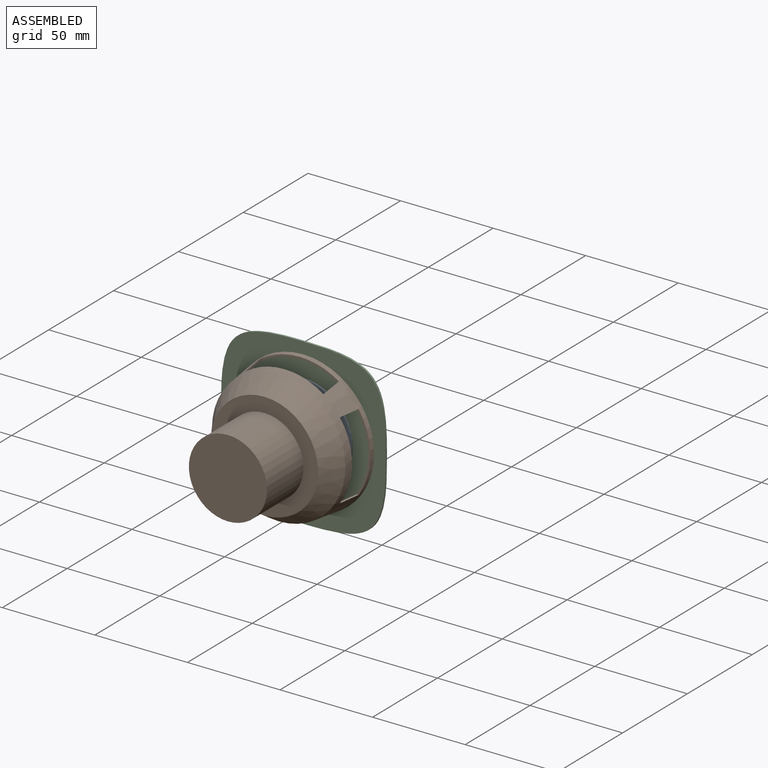
[diagram: assembled view]
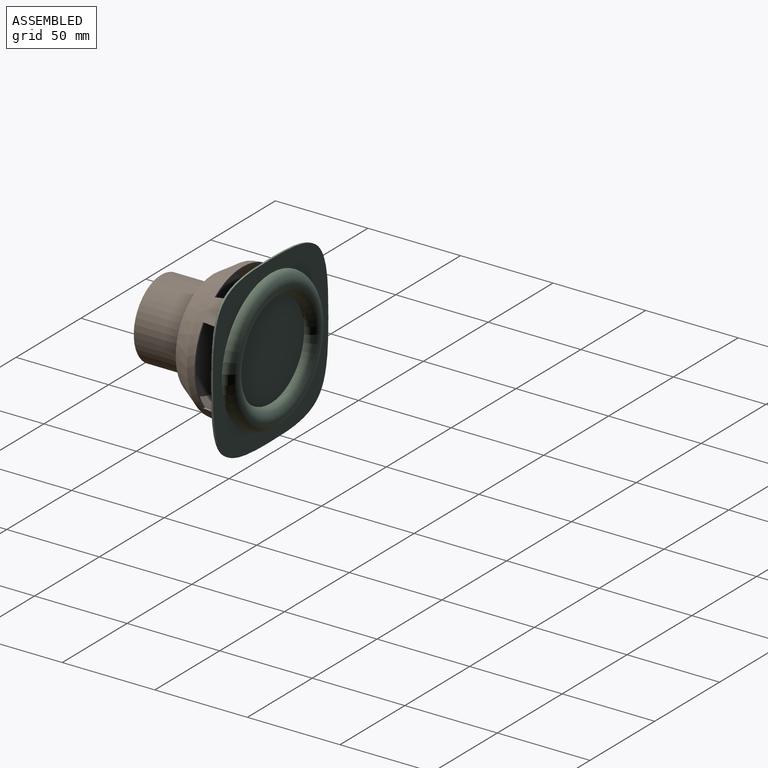
[diagram: assembled view, second angle]
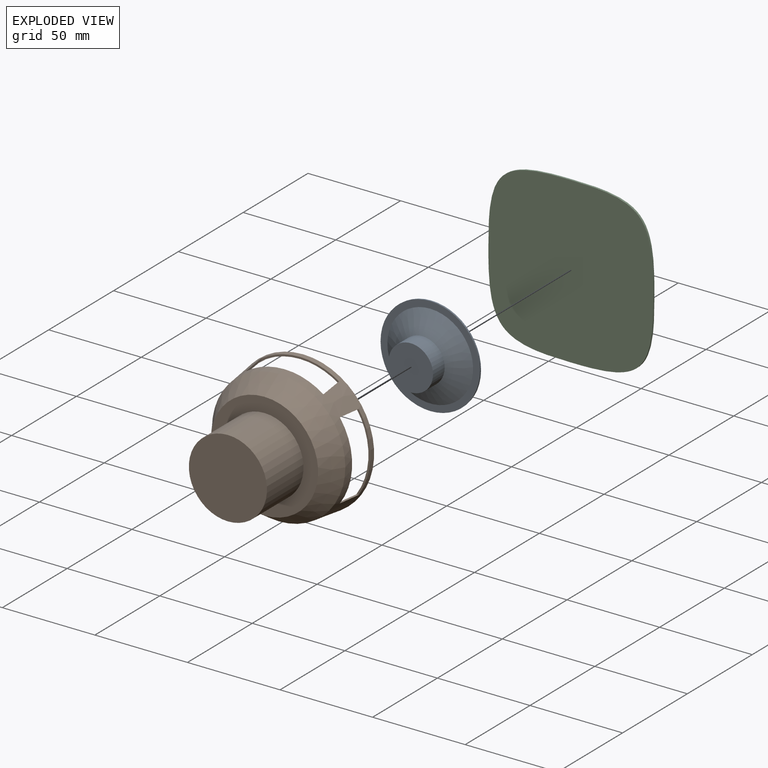
[diagram: exploded view]
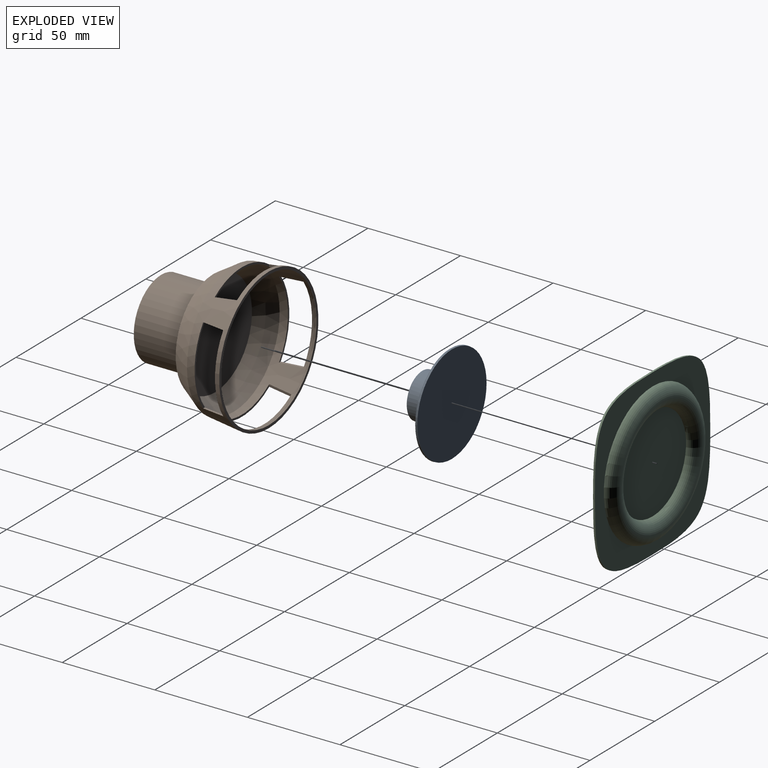
[diagram: exploded view, second angle]
ASSEMBLY  parts=3 mates=2
PART A: 6 faces, bbox 61x19.6x61 mm
  f0: plane 24x24mm, normal (0,-1,0), area 452.4mm2, adj f1
  f1: cylinder r=12mm len=24mm, axis (0,-1,0), area 678.6mm2, adj f0,f2
  f2: cone r=12mm half-angle=61.7deg, axis (0,1,0), area 1397.2mm2, adj f1,f3
  f3: plane 53.7x53.7mm, normal (0,-1,0), area 582.4mm2, adj f2,f4
  f4: torus R=31.75mm, axis (0,1,0), area 169.4mm2, adj f3,f5
  f5: plane 53.5x53.5mm, normal (0,1,0), area 2248mm2, adj f4
PART B: 27 faces, bbox 79.6x61.7x79.6 mm
  f0: torus R=31.75mm, axis (0,1,0), area 232.3mm2, adj f25,f26
  f1: plane 12.03x2.99mm, normal (-1,0,0), area 14.7mm2, adj f2,f4,f13,f22
  f2: plane 42x7.56mm, normal (0,-1,0), area 44.9mm2, adj f1,f3,f13,f22
  f3: plane 12.03x2.99mm, normal (1,0,0), area 14.7mm2, adj f2,f4,f13,f22
  f4: plane 42x7.88mm, normal (0,1,0), area 45.2mm2, adj f1,f3,f13,f22
  f5: plane 12.03x2.99mm, normal (0,0,-1), area 14.7mm2, adj f6,f8,f13,f22
  f6: plane 42x7.56mm, normal (0,-1,0), area 44.9mm2, adj f5,f7,f13,f22
  f7: plane 12.03x2.99mm, normal (0,0,1), area 14.7mm2, adj f6,f8,f13,f22
  f8: plane 42x7.88mm, normal (0,1,0), area 45.2mm2, adj f5,f7,f13,f22
  f9: plane 12.03x2.99mm, normal (1,0,0), area 14.7mm2, adj f10,f12,f13,f22
  f10: plane 42x7.56mm, normal (0,-1,0), area 44.9mm2, adj f9,f11,f13,f22
  f11: plane 12.03x2.99mm, normal (-1,0,0), area 14.7mm2, adj f10,f12,f13,f22
  f12: plane 42x7.88mm, normal (0,1,0), area 45.2mm2, adj f9,f11,f13,f22
  f13: cone r=38.25mm half-angle=6.8deg, axis (0,1,0), area 2305.4mm2, adj f1,f2,f3,f4,f5,f6,f7,f8
  f14: cone r=36mm half-angle=32.5deg, axis (0,1,0), area 2662.5mm2, adj f13,f15
  f15: plane 58x58mm, normal (0,-1,0), area 1243.4mm2, adj f14,f16
  f16: cylinder r=21.1mm len=42.2mm, axis (0,1,0), area 3734.1mm2, adj f15,f17
  f17: plane 42.2x42.2mm, normal (0,-1,0), area 1398.7mm2, adj f16
  f18: plane 12.03x2.99mm, normal (0,0,1), area 14.7mm2, adj f13,f19,f21,f22
  f19: plane 42x7.56mm, normal (0,-1,0), area 44.9mm2, adj f13,f18,f20,f22
  f20: plane 12.03x2.99mm, normal (0,0,-1), area 14.7mm2, adj f13,f19,f21,f22
  f21: plane 42x7.88mm, normal (0,1,0), area 45.2mm2, adj f13,f18,f20,f22
  f22: cone r=37.26mm half-angle=6.8deg, axis (0,1,0), area 1864.1mm2, adj f1,f2,f3,f4,f5,f6,f7,f8
  f23: cone r=35.16mm half-angle=32.5deg, axis (0,1,0), area 2445.4mm2, adj f22,f24
  f24: plane 56.9x56.9mm, normal (0,1,0), area 2543mm2, adj f23
  f25: plane 74.25x74.25mm, normal (0,-1,0), area 110.2mm2, adj f0,f22
  f26: plane 76.5x76.5mm, normal (0,1,0), area 353.4mm2, adj f0,f13
PART C: 11 faces, bbox 89x6x89 mm
  f0: plane 51.67x51.67mm, normal (0,1,0), area 2096.7mm2, adj f1
  f1: torus R=31.75mm, axis (0,1,0), area 3359.5mm2, adj f0,f2
  f2: plane 89x89mm, normal (0,1,0), area 2748.6mm2, adj f1,f3,f4,f5,f6,f7
  f3: extruded ~44.5x44.5mm, area 76.9mm2, adj f2,f4,f7,f8
  f4: extruded ~44.5x44.5mm, area 76.9mm2, adj f2,f3,f5,f8
  f5: extruded ~36.77x7.73mm, area 38.5mm2, adj f2,f4,f6,f8
  f6: extruded ~36.77x7.73mm, area 38.5mm2, adj f2,f5,f7,f8
  f7: extruded ~44.5x44.5mm, area 76.9mm2, adj f2,f3,f6,f8
  f8: plane 89x89mm, normal (0,-1,0), area 7205.7mm2, adj f3,f4,f5,f6,f7
  f9: plane 73.3x73.3mm, normal (0,1,0), area 1954.6mm2, adj f10
  f10: torus R=31.75mm, axis (0,1,0), area 2731.9mm2, adj f9
PLACE A t=(-38.59,-155.49,137.05)mm
PLACE B t=(-38.59,-155.49,137.05)mm
PLACE C t=(-38.59,-155.49,137.05)mm
MATE fastened C.f1 <-> B.f0  axis (0,-1,0) through (-38.59,-155.49,137.05)mm
MATE fastened A.f4 <-> C.f1  axis (0,1,0) through (-38.59,-155.49,137.05)mm
